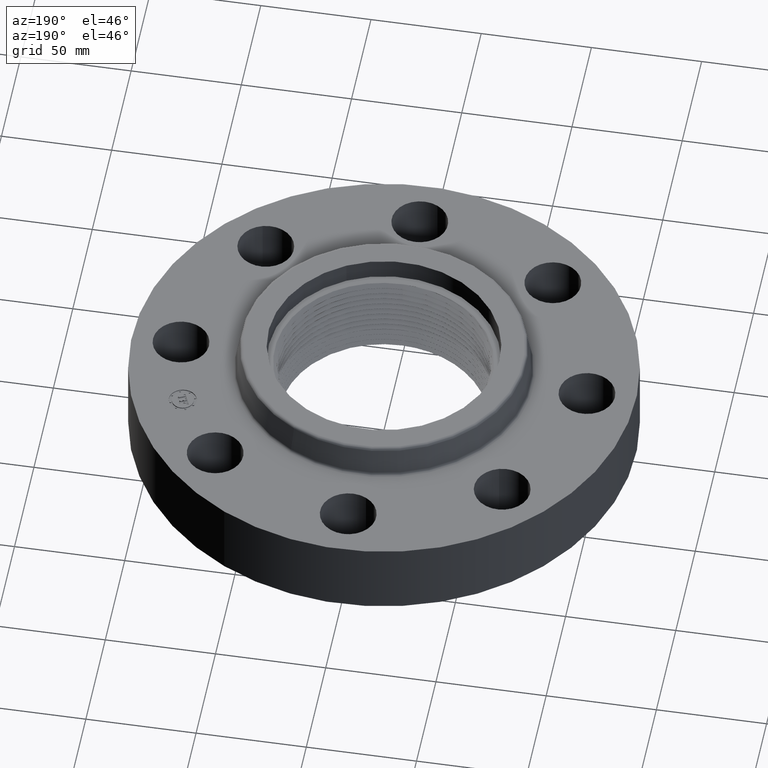
[diagram: clean part render]
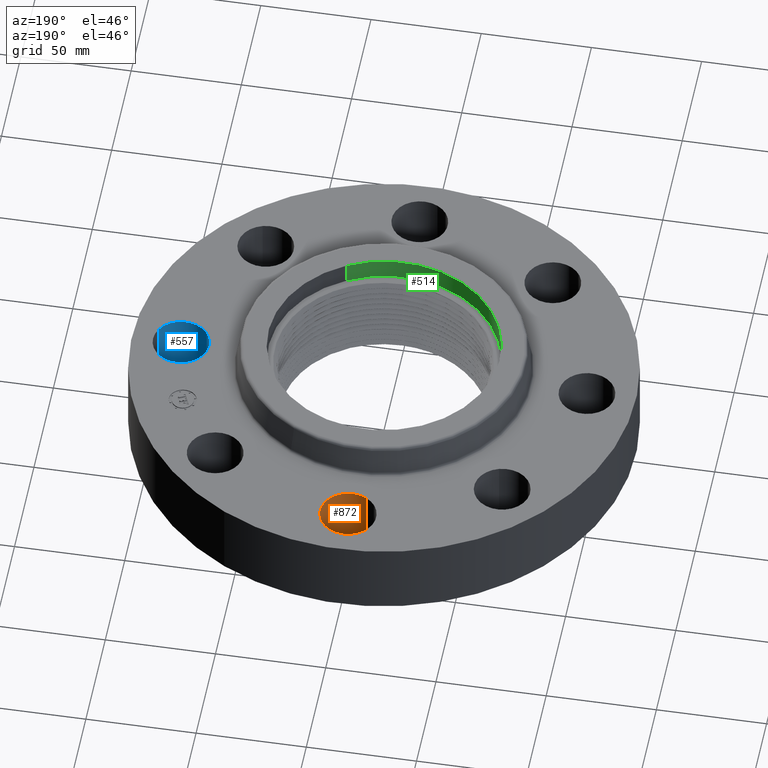
[diagram: same view with three faces highlighted in distinct colors, each labeled with its STEP entity id]
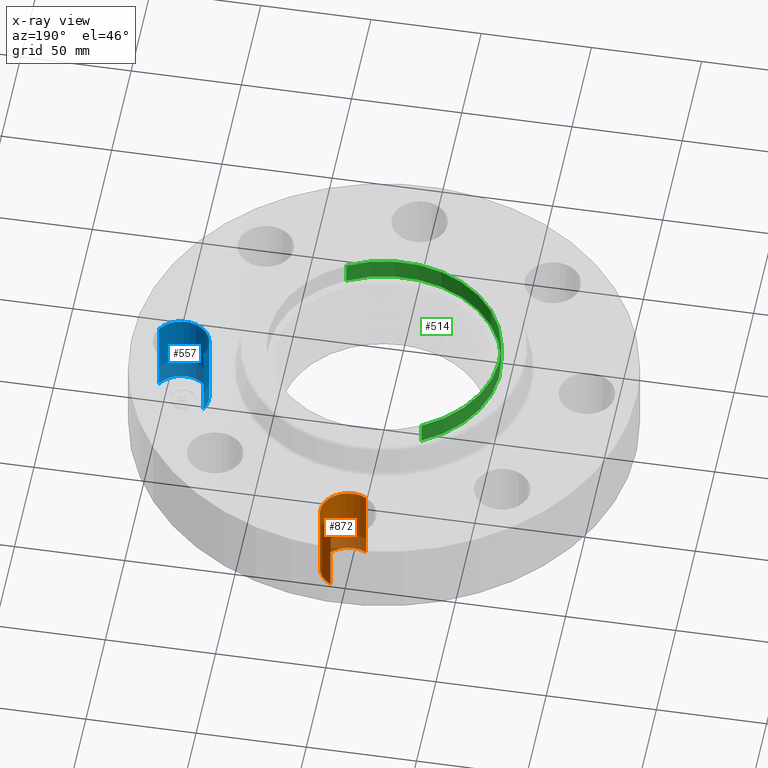
[diagram: x-ray of the same camera — body ghosted, the three highlighted faces saturated]
A machine part, auxiliary view with three faces highlighted in distinct colors.
The next image is the same camera in x-ray (body ghosted, the three faces saturated) — at least one of them is partly hidden behind the body in this view.
Their STEP definitions:

[orange] entity #872 — the highlighted cylindrical surface (edge-blend (fillet) strip) has radius 12.7 mm, axis along (0, 0, -1).
#446=AXIS2_PLACEMENT_3D('Circle Axis2P3D',#444,#445,$) ;
#833=AXIS2_PLACEMENT_3D('Cylinder Axis2P3D',#830,#831,#832) ;
#863=AXIS2_PLACEMENT_3D('Circle Axis2P3D',#861,#862,$) ;
#439=CARTESIAN_POINT('Vertex',(-0.239712769303,3.18620871907,0.)) ;
#441=CARTESIAN_POINT('Vertex',(0.239712769303,4.06379128096,0.)) ;
#444=CARTESIAN_POINT('Axis2P3D Location',(-5.59482469102E-016,3.62500000001,0.)) ;
#830=CARTESIAN_POINT('Axis2P3D Location',(-6.65901697039E-016,3.62500000001,1.37606299213)) ;
#835=CARTESIAN_POINT('Line Origine',(-0.239712769303,3.18620871907,0.690000000003)) ;
#839=CARTESIAN_POINT('Vertex',(-0.239712769303,3.18620871907,1.38000000001)) ;
#842=CARTESIAN_POINT('Line Origine',(0.239712769303,4.06379128096,0.690000000003)) ;
#846=CARTESIAN_POINT('Vertex',(0.239712769303,4.06379128096,1.38000000001)) ;
#861=CARTESIAN_POINT('Axis2P3D Location',(-6.65901697039E-016,3.62500000001,1.38000000001)) ;
#445=DIRECTION('Axis2P3D Direction',(0.,0.,-0.0393700787402)) ;
#831=DIRECTION('Axis2P3D Direction',(0.,0.,-0.0393700787402)) ;
#832=DIRECTION('Axis2P3D XDirection',(0.0188750212049,0.0345504945626,0.)) ;
#836=DIRECTION('Vector Direction',(0.,0.,-0.0393700787402)) ;
#843=DIRECTION('Vector Direction',(0.,0.,-0.0393700787402)) ;
#862=DIRECTION('Axis2P3D Direction',(0.,0.,-0.0393700787402)) ;
#837=VECTOR('Line Direction',#836,0.0393700787402) ;
#844=VECTOR('Line Direction',#843,0.0393700787402) ;
#867=ORIENTED_EDGE('',*,*,#848,.F.) ;
#868=ORIENTED_EDGE('',*,*,#448,.T.) ;
#869=ORIENTED_EDGE('',*,*,#841,.T.) ;
#870=ORIENTED_EDGE('',*,*,#865,.F.) ;
#872=ADVANCED_FACE('PartBody',(#871),#834,.F.) ;
#447=CIRCLE('generated circle',#446,0.500000000002) ;
#864=CIRCLE('generated circle',#863,0.500000000002) ;
#834=CYLINDRICAL_SURFACE('generated cylinder',#833,0.500000000002) ;
#448=EDGE_CURVE('',#442,#440,#447,.T.) ;
#841=EDGE_CURVE('',#440,#840,#838,.F.) ;
#848=EDGE_CURVE('',#442,#847,#845,.F.) ;
#865=EDGE_CURVE('',#847,#840,#864,.T.) ;
#866=EDGE_LOOP('',(#867,#868,#869,#870)) ;
#871=FACE_OUTER_BOUND('',#866,.T.) ;
#838=LINE('Line',#835,#837) ;
#845=LINE('Line',#842,#844) ;
#440=VERTEX_POINT('',#439) ;
#442=VERTEX_POINT('',#441) ;
#840=VERTEX_POINT('',#839) ;
#847=VERTEX_POINT('',#846) ;

[blue] entity #557 — the highlighted cylindrical surface (edge-blend (fillet) strip) has radius 12.7 mm, axis along (0, -0, -1).
#329=AXIS2_PLACEMENT_3D('Circle Axis2P3D',#327,#328,$) ;
#518=AXIS2_PLACEMENT_3D('Cylinder Axis2P3D',#515,#516,#517) ;
#548=AXIS2_PLACEMENT_3D('Circle Axis2P3D',#546,#547,$) ;
#327=CARTESIAN_POINT('Axis2P3D Location',(3.62500000001,-6.99353086378E-017,0.)) ;
#331=CARTESIAN_POINT('Vertex',(4.06379128096,-0.239712769303,0.)) ;
#333=CARTESIAN_POINT('Vertex',(3.18620871907,0.239712769303,0.)) ;
#515=CARTESIAN_POINT('Axis2P3D Location',(3.62500000001,0.,1.37606299213)) ;
#520=CARTESIAN_POINT('Line Origine',(3.18620871907,0.239712769303,0.690000000003)) ;
#524=CARTESIAN_POINT('Vertex',(3.18620871907,0.239712769303,1.38000000001)) ;
#527=CARTESIAN_POINT('Line Origine',(4.06379128096,-0.239712769303,0.690000000003)) ;
#531=CARTESIAN_POINT('Vertex',(4.06379128096,-0.239712769303,1.38000000001)) ;
#546=CARTESIAN_POINT('Axis2P3D Location',(3.62500000001,0.,1.38000000001)) ;
#328=DIRECTION('Axis2P3D Direction',(0.,0.,-0.0393700787402)) ;
#516=DIRECTION('Axis2P3D Direction',(0.,-0.,-0.0393700787402)) ;
#517=DIRECTION('Axis2P3D XDirection',(0.0345504945626,-0.0188750212049,0.)) ;
#521=DIRECTION('Vector Direction',(0.,0.,-0.0393700787402)) ;
#528=DIRECTION('Vector Direction',(0.,0.,-0.0393700787402)) ;
#547=DIRECTION('Axis2P3D Direction',(0.,-0.,-0.0393700787402)) ;
#522=VECTOR('Line Direction',#521,0.0393700787402) ;
#529=VECTOR('Line Direction',#528,0.0393700787402) ;
#552=ORIENTED_EDGE('',*,*,#533,.F.) ;
#553=ORIENTED_EDGE('',*,*,#335,.T.) ;
#554=ORIENTED_EDGE('',*,*,#526,.T.) ;
#555=ORIENTED_EDGE('',*,*,#550,.F.) ;
#557=ADVANCED_FACE('PartBody',(#556),#519,.F.) ;
#330=CIRCLE('generated circle',#329,0.500000000002) ;
#549=CIRCLE('generated circle',#548,0.500000000002) ;
#519=CYLINDRICAL_SURFACE('generated cylinder',#518,0.500000000002) ;
#335=EDGE_CURVE('',#332,#334,#330,.T.) ;
#526=EDGE_CURVE('',#334,#525,#523,.F.) ;
#533=EDGE_CURVE('',#332,#532,#530,.F.) ;
#550=EDGE_CURVE('',#532,#525,#549,.T.) ;
#551=EDGE_LOOP('',(#552,#553,#554,#555)) ;
#556=FACE_OUTER_BOUND('',#551,.T.) ;
#523=LINE('Line',#520,#522) ;
#530=LINE('Line',#527,#529) ;
#332=VERTEX_POINT('',#331) ;
#334=VERTEX_POINT('',#333) ;
#525=VERTEX_POINT('',#524) ;
#532=VERTEX_POINT('',#531) ;

[green] entity #514 — the highlighted cylindrical surface (partial cylindrical patch) has radius 52.451 mm, axis along (0, 0, 1).
#42=AXIS2_PLACEMENT_3D('Circle Axis2P3D',#40,#41,$) ;
#475=AXIS2_PLACEMENT_3D('Cylinder Axis2P3D',#472,#473,#474) ;
#505=AXIS2_PLACEMENT_3D('Circle Axis2P3D',#503,#504,$) ;
#40=CARTESIAN_POINT('Axis2P3D Location',(0.,0.,1.56000000001)) ;
#44=CARTESIAN_POINT('Vertex',(-0.990013737222,1.81220799031,1.56000000001)) ;
#46=CARTESIAN_POINT('Vertex',(0.990013737222,-1.81220799031,1.56000000001)) ;
#472=CARTESIAN_POINT('Axis2P3D Location',(0.,0.,1.56000000001)) ;
#481=CARTESIAN_POINT('Vertex',(-0.990013737222,1.81220799031,1.94000000001)) ;
#483=CARTESIAN_POINT('Vertex',(0.990013737222,-1.81220799031,1.94000000001)) ;
#486=CARTESIAN_POINT('Line Origine',(-0.990013737222,1.81220799031,1.75000000001)) ;
#491=CARTESIAN_POINT('Line Origine',(0.990013737222,-1.81220799031,1.75000000001)) ;
#503=CARTESIAN_POINT('Axis2P3D Location',(0.,0.,1.94000000001)) ;
#41=DIRECTION('Axis2P3D Direction',(0.,0.,0.0393700787402)) ;
#473=DIRECTION('Axis2P3D Direction',(0.,0.,0.0393700787402)) ;
#474=DIRECTION('Axis2P3D XDirection',(-0.0188750212049,0.0345504945626,0.)) ;
#487=DIRECTION('Vector Direction',(0.,0.,0.0393700787402)) ;
#492=DIRECTION('Vector Direction',(0.,0.,0.0393700787402)) ;
#504=DIRECTION('Axis2P3D Direction',(0.,0.,0.0393700787402)) ;
#488=VECTOR('Line Direction',#487,0.0393700787402) ;
#493=VECTOR('Line Direction',#492,0.0393700787402) ;
#509=ORIENTED_EDGE('',*,*,#507,.F.) ;
#510=ORIENTED_EDGE('',*,*,#495,.F.) ;
#511=ORIENTED_EDGE('',*,*,#48,.F.) ;
#512=ORIENTED_EDGE('',*,*,#490,.T.) ;
#514=ADVANCED_FACE('PartBody',(#513),#476,.F.) ;
#43=CIRCLE('generated circle',#42,2.06500000001) ;
#506=CIRCLE('generated circle',#505,2.06500000001) ;
#476=CYLINDRICAL_SURFACE('generated cylinder',#475,2.06500000001) ;
#48=EDGE_CURVE('',#45,#47,#43,.T.) ;
#490=EDGE_CURVE('',#45,#482,#489,.T.) ;
#495=EDGE_CURVE('',#47,#484,#494,.T.) ;
#507=EDGE_CURVE('',#484,#482,#506,.F.) ;
#508=EDGE_LOOP('',(#509,#510,#511,#512)) ;
#513=FACE_OUTER_BOUND('',#508,.T.) ;
#489=LINE('Line',#486,#488) ;
#494=LINE('Line',#491,#493) ;
#45=VERTEX_POINT('',#44) ;
#47=VERTEX_POINT('',#46) ;
#482=VERTEX_POINT('',#481) ;
#484=VERTEX_POINT('',#483) ;